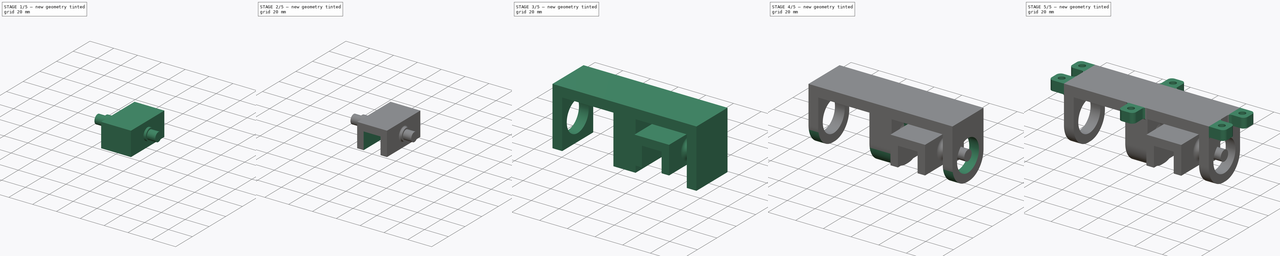
[diagram: build sequence overview — one tinted view per stage of 5, left to right]
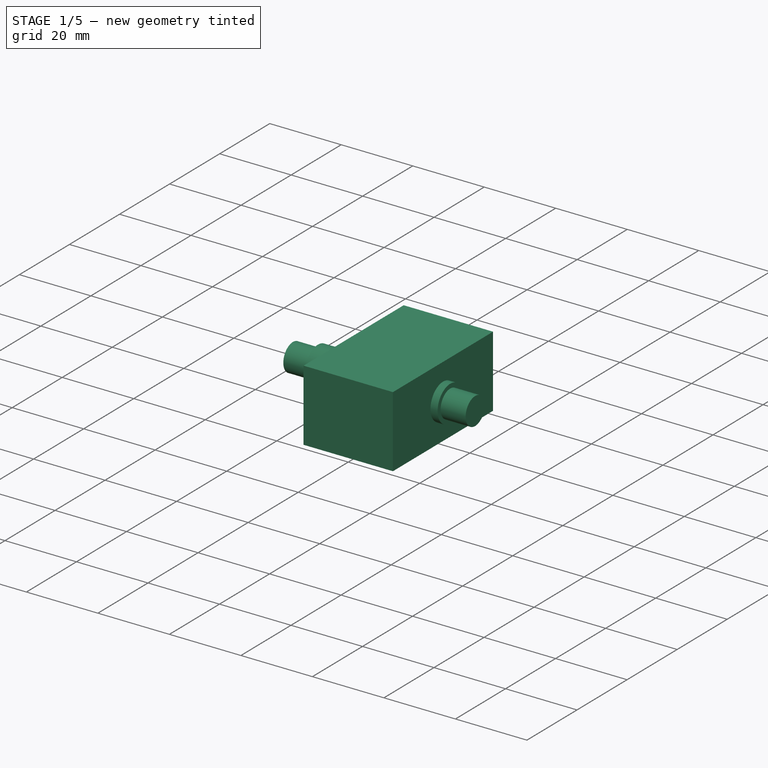
[diagram: stage 1 of 5 — iso view after this stage's code; geometry added in this stage tinted green]
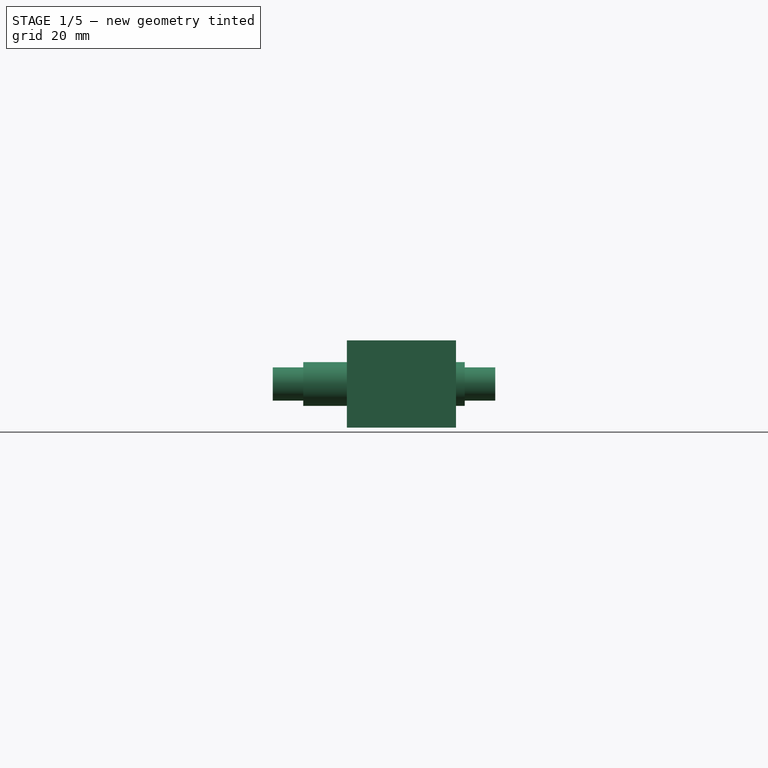
[diagram: stage 1 of 5 — front view after this stage's code; geometry added in this stage tinted green]
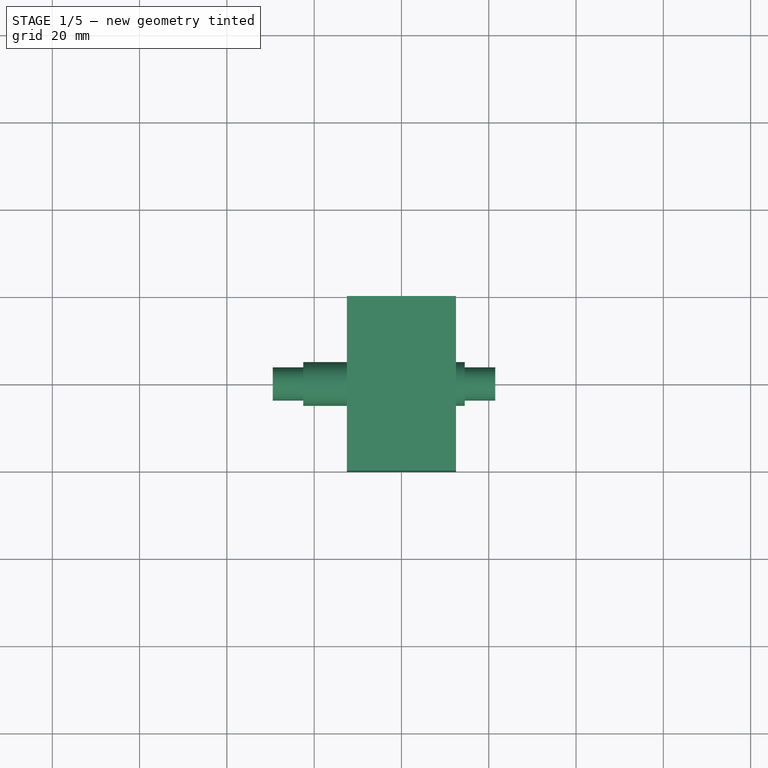
[diagram: stage 1 of 5 — top view after this stage's code; geometry added in this stage tinted green]
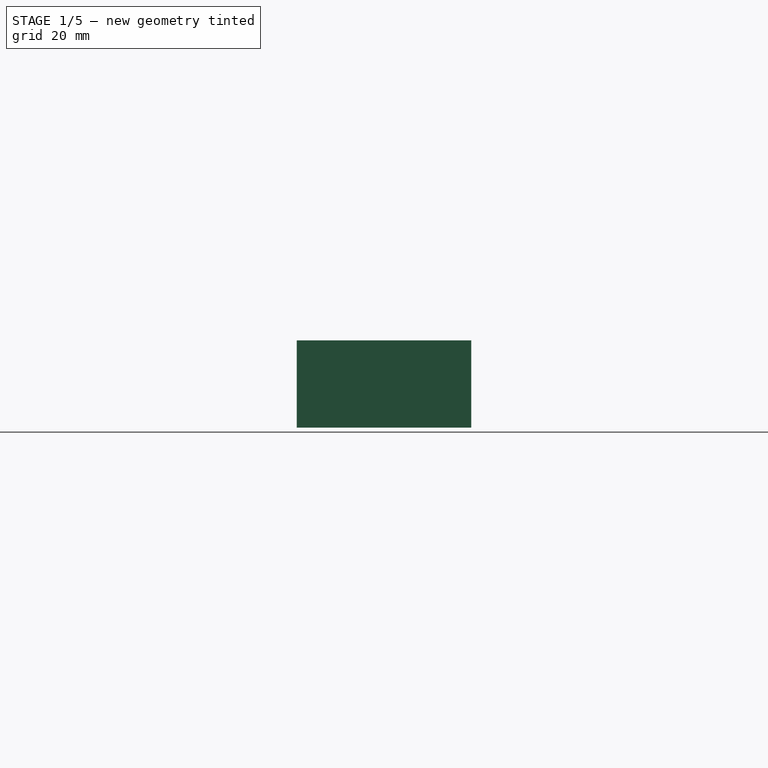
[diagram: stage 1 of 5 — right view after this stage's code; geometry added in this stage tinted green]
FCSTD DOCUMENT  (FreeCAD 0.16R6706 (Git))
Label: spot_welder_holder
License: All rights reserved
LicenseURL: http://en.wikipedia.org/wiki/All_rights_reserved
objects: Sketcher::SketchObject×10, PartDesign::Pad×5, PartDesign::Pocket×5, PartDesign::Fillet×5, Part::FeaturePython×1
note: 36 computed .brp shape members not serialized (recipe doc carries the construction recipe); baked Part::Feature solids carry a one-line shape summary decoded from their .brp

FEATURE [Sketcher::SketchObject] Sketch
  sketch-geometry (4):
    g0: LineSegment StartX=-12.5 StartY=20 StartZ=0 EndX=12.5 EndY=20 EndZ=0
    g1: LineSegment StartX=12.5 StartY=20 StartZ=0 EndX=12.5 EndY=-20 EndZ=0
    g2: LineSegment StartX=12.5 StartY=-20 StartZ=0 EndX=-12.5 EndY=-20 EndZ=0
    g3: LineSegment StartX=-12.5 StartY=-20 StartZ=0 EndX=-12.5 EndY=20 EndZ=0
  constraints (12):
    c: Coincident(g0,g1)
    c: Coincident(g1,g2)
    c: Coincident(g2,g3)
    c: Coincident(g3,g0)
    c: Horizontal(g0)
    c: Horizontal(g2)
    c: Vertical(g1)
    c: Vertical(g3)
    c: Distance(g3) = 40
    c: DistanceX(g2,g2) = 25
    c: Symmetric(g2,g0,g-1)
    c: Symmetric(g0,g0,g-2)
FEATURE [PartDesign::Pad] Pad
  Length = 20
  Length2 = 100
  Sketch = -> Sketch
  Type = 0
FEATURE [Sketcher::SketchObject] Sketch001
  Placement = pos=(-12.5,0,0) rot=(0.57735,-0.57735,-0.57735;2.0944rad)
  Support = -> Pad [Face4]
  sketch-geometry (1):
    g0: Circle CenterX=0 CenterY=10 CenterZ=0 NormalX=0 NormalY=0 NormalZ=1 Radius=3.8
  constraints (3):
    c: PointOnObject(g0,g-2)
    c: Radius(g0) = 3.8
    c: DistanceY(g-1,g0) = 10
FEATURE [PartDesign::Pad] Pad001
  Length = 17
  Length2 = 34
  Sketch = -> Sketch001
  Type = 4
FEATURE [Sketcher::SketchObject] Sketch002
  Placement = pos=(-12.5,0,0) rot=(0.57735,-0.57735,-0.57735;2.0944rad)
  Support = -> Pad001 [Face2]
  sketch-geometry (1):
    g0: Circle CenterX=0 CenterY=10 CenterZ=0 NormalX=0 NormalY=0 NormalZ=1 Radius=5
  constraints (3):
    c: PointOnObject(g0,g-2)
    c: Radius(g0) = 5
    c: Distance(g-1,g0) = 10
FEATURE [PartDesign::Pad] Pad002
  Length = 10
  Length2 = 27
  Sketch = -> Sketch002
  Type = 4
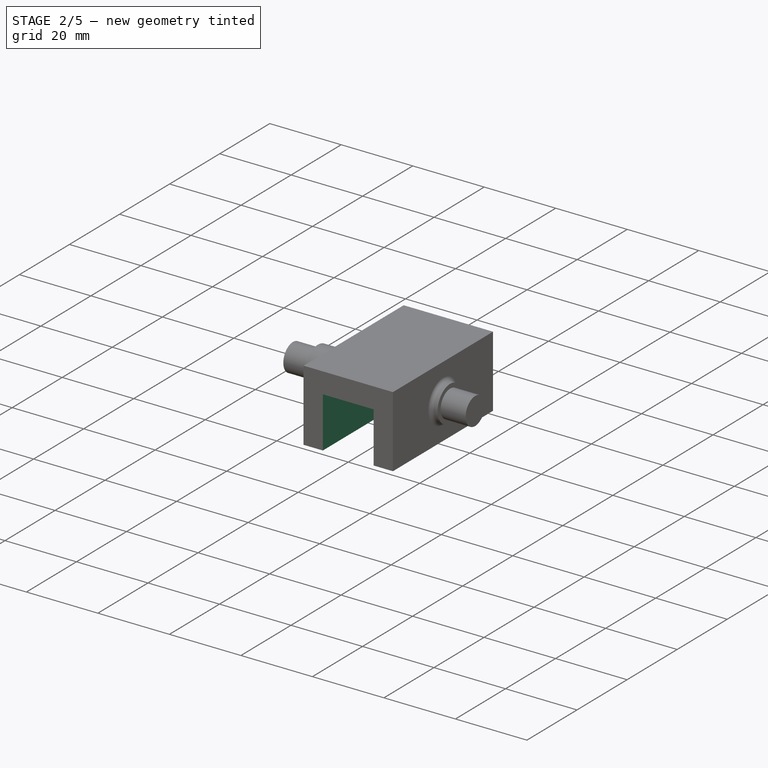
[diagram: stage 2 of 5 — iso view after this stage's code; geometry added in this stage tinted green]
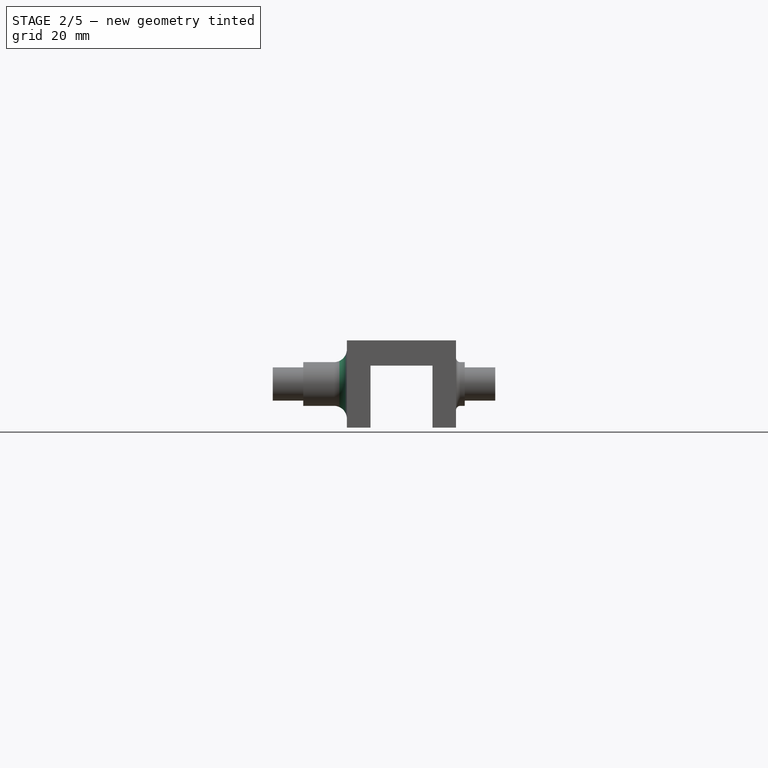
[diagram: stage 2 of 5 — front view after this stage's code; geometry added in this stage tinted green]
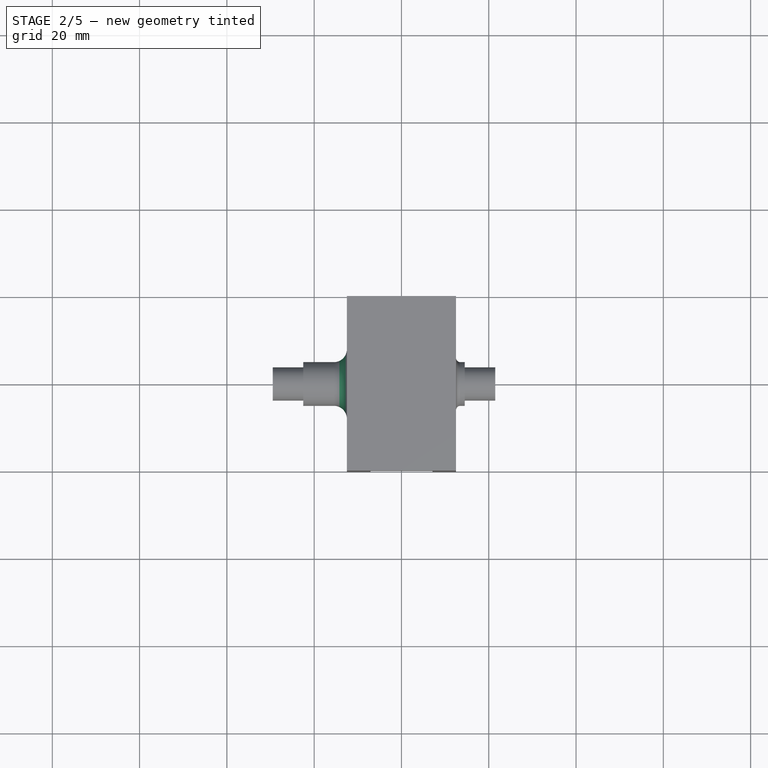
[diagram: stage 2 of 5 — top view after this stage's code; geometry added in this stage tinted green]
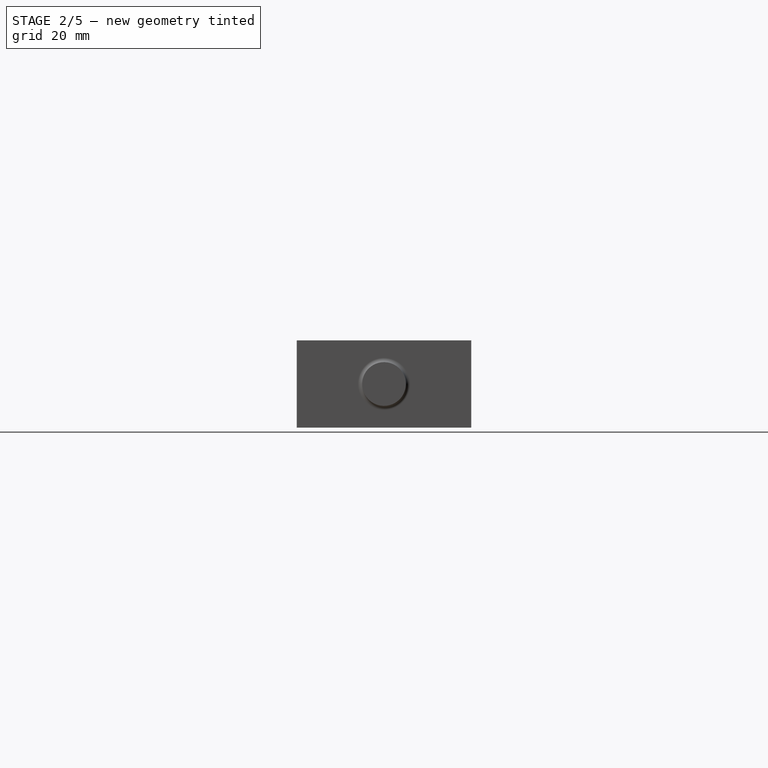
[diagram: stage 2 of 5 — right view after this stage's code; geometry added in this stage tinted green]
FEATURE [Sketcher::SketchObject] Sketch003
  Placement = pos=(0,-20,0) rot=(1,0,0;1.5708rad)
  Support = -> Pad002 [Face6]
  sketch-geometry (4):
    g0: LineSegment StartX=-7.1 StartY=14.2 StartZ=0 EndX=7.1 EndY=14.2 EndZ=0
    g1: LineSegment StartX=7.1 StartY=14.2 StartZ=0 EndX=7.1 EndY=0 EndZ=0
    g2: LineSegment StartX=7.1 StartY=0 StartZ=0 EndX=-7.1 EndY=0 EndZ=0
    g3: LineSegment StartX=-7.1 StartY=0 StartZ=0 EndX=-7.1 EndY=14.2 EndZ=0
  constraints (11):
    c: Coincident(g0,g1)
    c: Coincident(g1,g2)
    c: Coincident(g2,g3)
    c: Coincident(g3,g0)
    c: Horizontal(g0)
    c: Horizontal(g2)
    c: Vertical(g1)
    c: Vertical(g3)
    c: Symmetric(g1,g2,g-1)
    c: DistanceY(g1,g1) = 14.2
    c: Distance(g0) = 14.2
FEATURE [PartDesign::Pocket] Pocket  label="holder"
  Length = 50
  Sketch = -> Sketch003
  Type = 0
FEATURE [PartDesign::Fillet] Fillet003
  Base = -> Pocket [Edge26]
  Radius = 3
FEATURE [PartDesign::Fillet] Fillet004  label="holder001"
  Base = -> Fillet003 [Edge30]
  Radius = 1
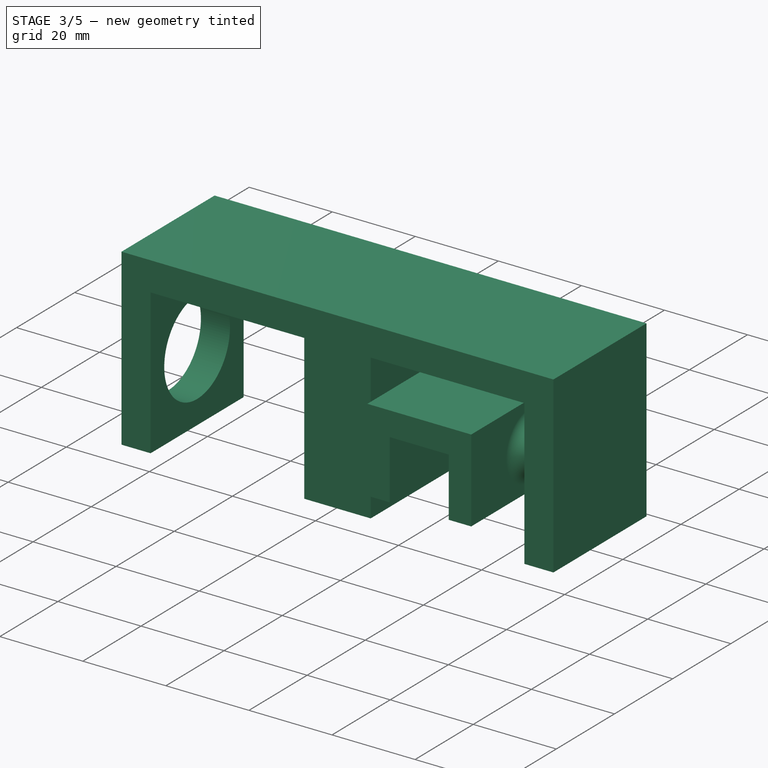
[diagram: stage 3 of 5 — iso view after this stage's code; geometry added in this stage tinted green]
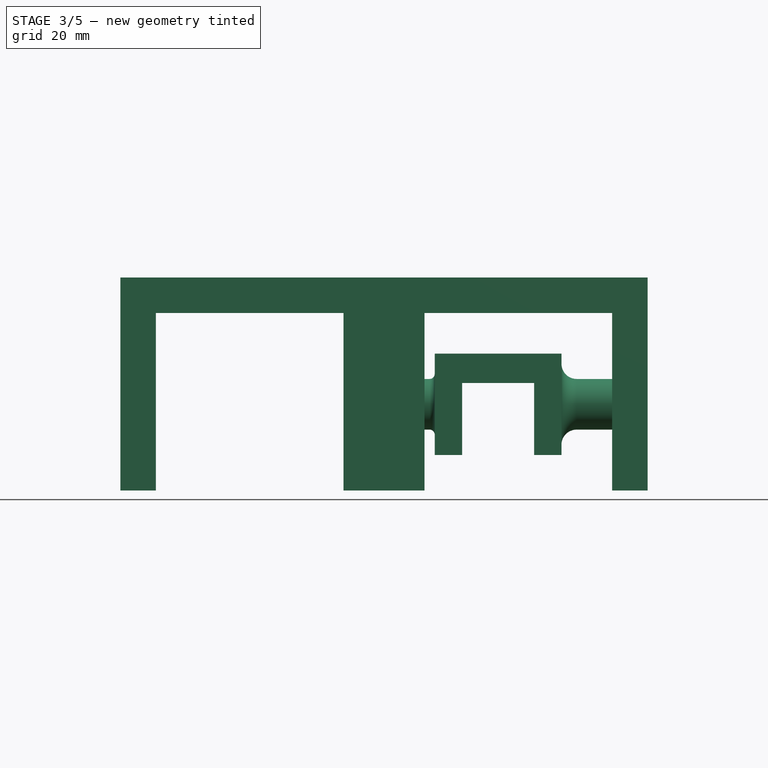
[diagram: stage 3 of 5 — front view after this stage's code; geometry added in this stage tinted green]
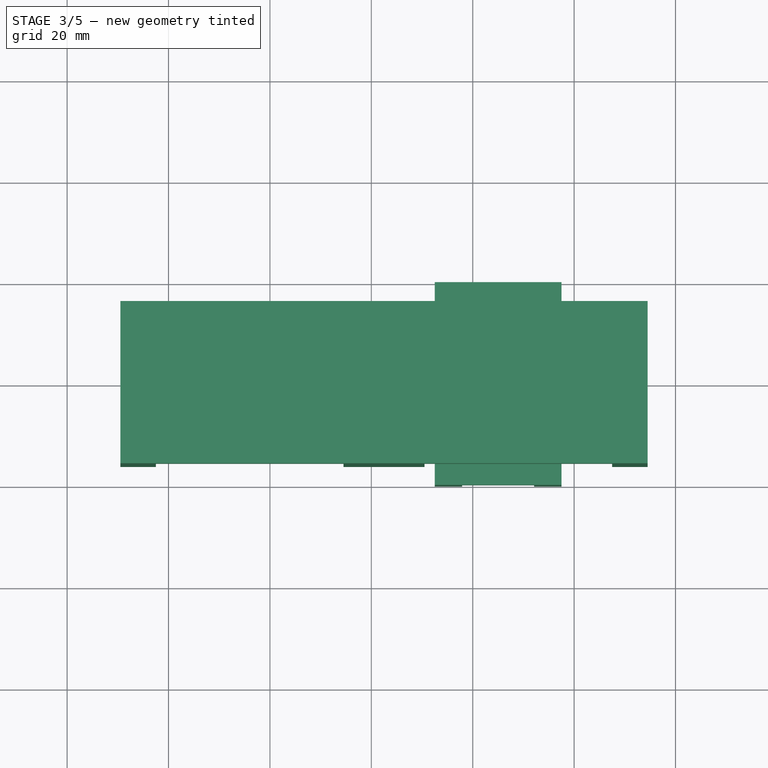
[diagram: stage 3 of 5 — top view after this stage's code; geometry added in this stage tinted green]
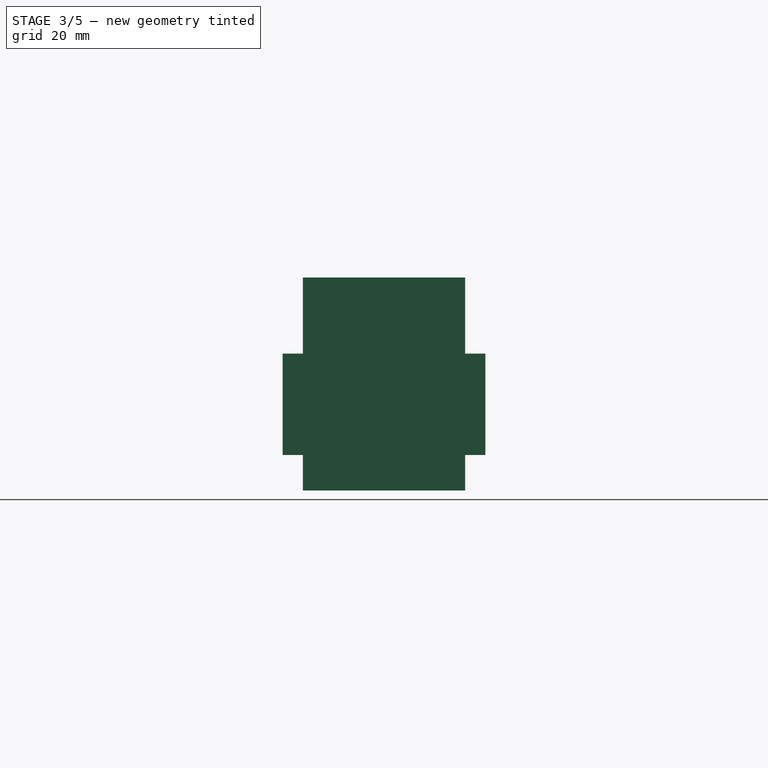
[diagram: stage 3 of 5 — right view after this stage's code; geometry added in this stage tinted green]
FEATURE [Sketcher::SketchObject] Sketch005
  sketch-geometry (4):
    g0: LineSegment StartX=-29.5 StartY=16 StartZ=0 EndX=74.5 EndY=16 EndZ=0
    g1: LineSegment StartX=74.5 StartY=16 StartZ=0 EndX=74.5 EndY=-16 EndZ=0
    g2: LineSegment StartX=74.5 StartY=-16 StartZ=0 EndX=-29.5 EndY=-16 EndZ=0
    g3: LineSegment StartX=-29.5 StartY=-16 StartZ=0 EndX=-29.5 EndY=16 EndZ=0
  constraints (12):
    c: Coincident(g0,g1)
    c: Coincident(g1,g2)
    c: Coincident(g2,g3)
    c: Coincident(g3,g0)
    c: Horizontal(g0)
    c: Horizontal(g2)
    c: Vertical(g1)
    c: Vertical(g3)
    c: DistanceX(g2,g-1) = 29.5
    c: DistanceX(g2,g2) = 104
    c: Symmetric(g0,g2,g-1)
    c: Distance(g3) = 32
FEATURE [PartDesign::Pad] Pad003
  Length = 35
  Length2 = 7
  Sketch = -> Sketch005
  Type = 4
FEATURE [Sketcher::SketchObject] Sketch006
  Placement = pos=(0,0,-7) rot=(1,0,0;3.14159rad)
  Support = -> Pad003 [Face5]
  sketch-geometry (8):
    g0: LineSegment StartX=-22.5 StartY=22.5 StartZ=0 EndX=14.5 EndY=22.5 EndZ=0
    g1: LineSegment StartX=14.5 StartY=22.5 StartZ=0 EndX=14.5 EndY=-22.5 EndZ=0
    g2: LineSegment StartX=14.5 StartY=-22.5 StartZ=0 EndX=-22.5 EndY=-22.5 EndZ=0
    g3: LineSegment StartX=-22.5 StartY=-22.5 StartZ=0 EndX=-22.5 EndY=22.5 EndZ=0
    g4: LineSegment StartX=30.5 StartY=22.5 StartZ=0 EndX=67.5 EndY=22.5 EndZ=0
    g5: LineSegment StartX=67.5 StartY=22.5 StartZ=0 EndX=67.5 EndY=-22.5 EndZ=0
    g6: LineSegment StartX=67.5 StartY=-22.5 StartZ=0 EndX=30.5 EndY=-22.5 EndZ=0
    g7: LineSegment StartX=30.5 StartY=-22.5 StartZ=0 EndX=30.5 EndY=22.5 EndZ=0
  constraints (24):
    c: Coincident(g0,g1)
    c: Coincident(g1,g2)
    c: Coincident(g2,g3)
    c: Coincident(g3,g0)
    c: Horizontal(g0)
    c: Horizontal(g2)
    c: Vertical(g1)
    c: Vertical(g3)
    c: Symmetric(g2,g0,g-1)
    c: Distance(g3) = 45
    c: Distance(g0) = 37
    c: Coincident(g4,g5)
    c: Coincident(g5,g6)
    c: Coincident(g6,g7)
    c: Coincident(g7,g4)
    c: Horizontal(g4)
    c: Horizontal(g6)
    c: Vertical(g5)
    c: Vertical(g7)
    c: Equal(g3,g7) = 45
    c: Equal(g0,g4) = 29
    c: DistanceX(g-1,g6) = 30.5
    c: PointOnObject(g6,g2)
    c: DistanceX(g-1,g0) = 14.5
FEATURE [PartDesign::Pocket] Pocket001
  Length = 35
  Sketch = -> Sketch006
  Type = 0
FEATURE [Sketcher::SketchObject] Sketch007
  Placement = pos=(-29.5,0,0) rot=(0.57735,-0.57735,-0.57735;2.0944rad)
  Support = -> Pocket001 [Face13]
  sketch-geometry (1):
    g0: Circle CenterX=0 CenterY=10 CenterZ=0 NormalX=0 NormalY=0 NormalZ=1 Radius=11.3
  constraints (3):
    c: PointOnObject(g0,g-2)
    c: Radius(g0) = 11.3
    c: DistanceY(g-1,g0) = 10
FEATURE [PartDesign::Pocket] Pocket002
  Length = 51
  Sketch = -> Sketch007
  Type = 0
FEATURE [Part::FeaturePython] Clone  label="Clone of holder001"  # Draft clone (typed FeaturePython)
  Objects = -> [Fillet004]
  Placement = pos=(45,0,0) rot=(0,0,1;3.14159rad)
  Scale = (1,1,1)
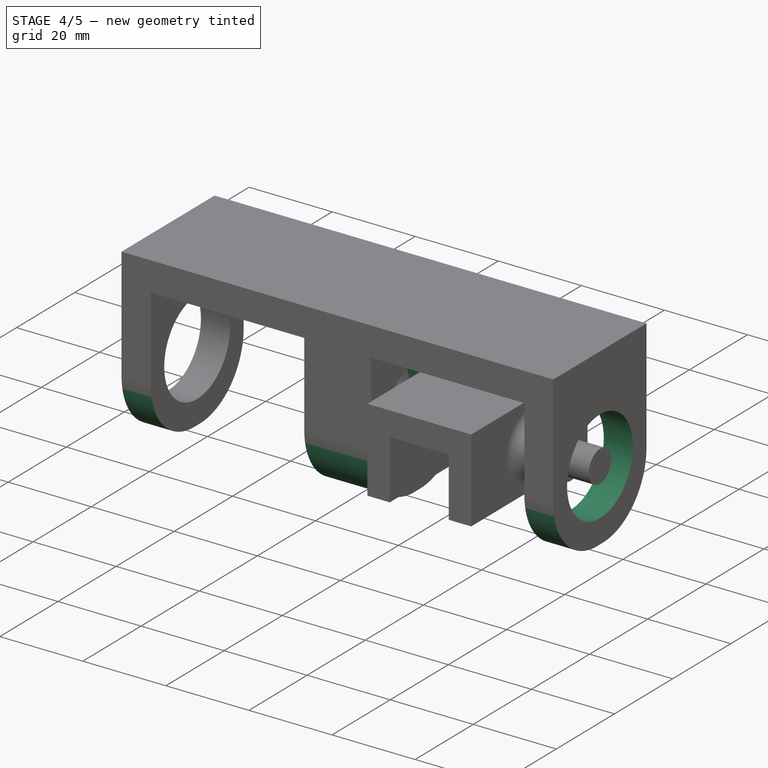
[diagram: stage 4 of 5 — iso view after this stage's code; geometry added in this stage tinted green]
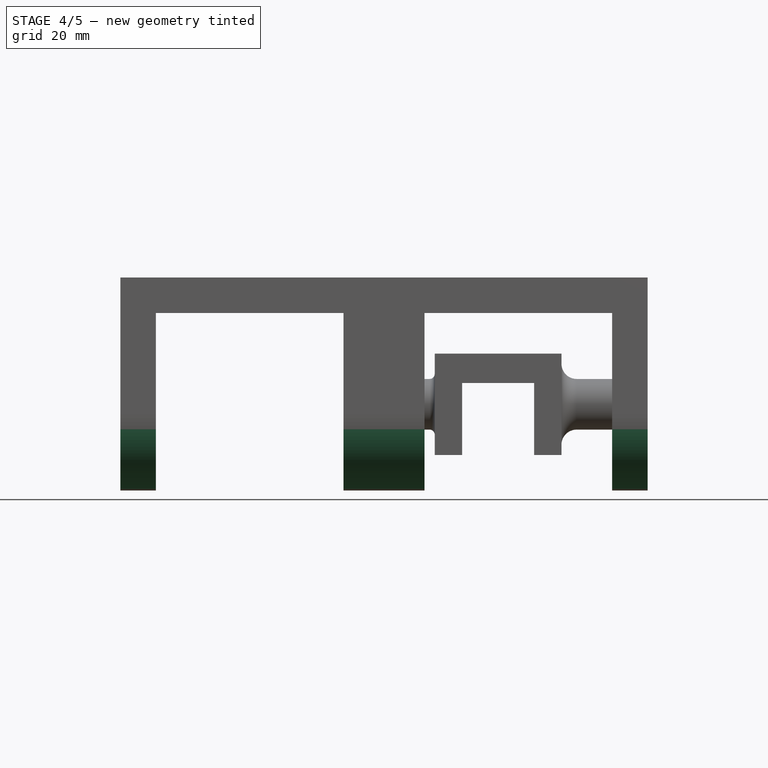
[diagram: stage 4 of 5 — front view after this stage's code; geometry added in this stage tinted green]
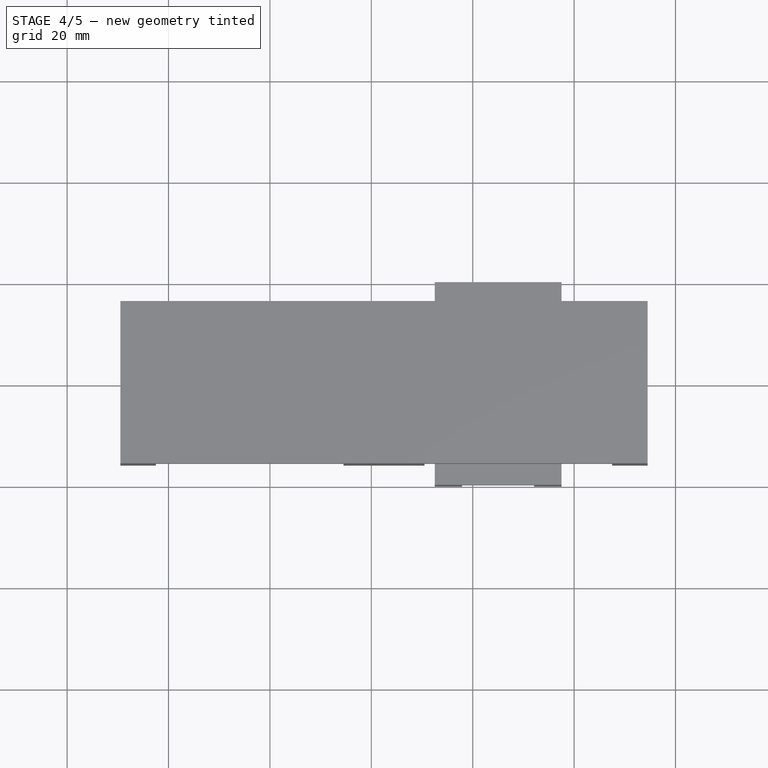
[diagram: stage 4 of 5 — top view after this stage's code; geometry added in this stage tinted green]
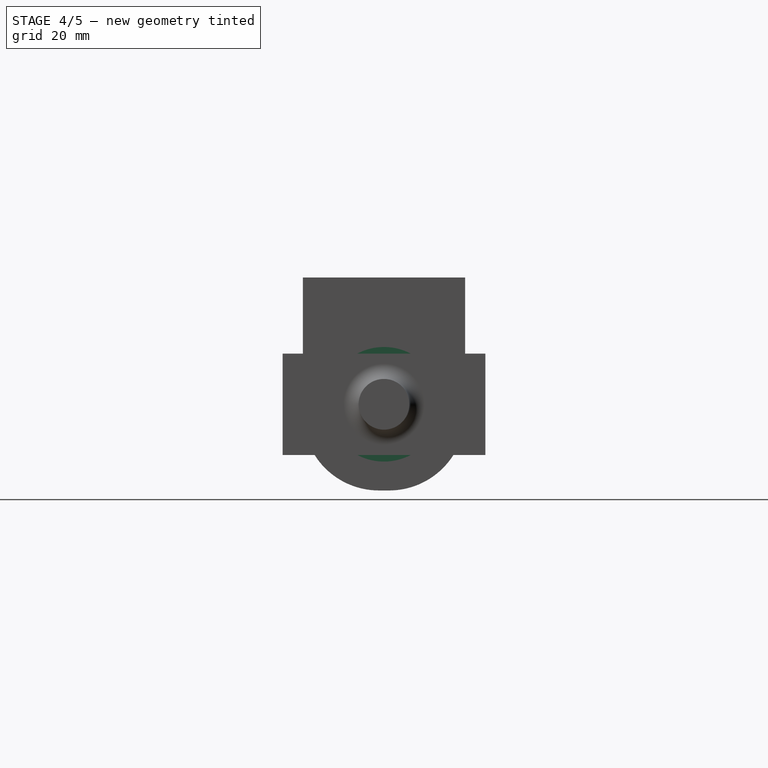
[diagram: stage 4 of 5 — right view after this stage's code; geometry added in this stage tinted green]
FEATURE [Sketcher::SketchObject] Sketch008
  Placement = pos=(74.5,0,0) rot=(0.57735,0.57735,0.57735;2.0944rad)
  Support = -> Pocket002 [Face11]
  sketch-geometry (1):
    g0: Circle CenterX=0 CenterY=10 CenterZ=0 NormalX=0 NormalY=0 NormalZ=1 Radius=11.3
  constraints (3):
    c: PointOnObject(g0,g-2)
    c: Radius(g0) = 11.3
    c: DistanceY(g-1,g0) = 10
FEATURE [PartDesign::Pocket] Pocket003
  Length = 51
  Sketch = -> Sketch008
  Type = 0
FEATURE [Sketcher::SketchObject] Sketch009
  Placement = pos=(23.5,0,0) rot=(0.57735,0.57735,0.57735;2.0944rad)
  Support = -> Pocket003 [Face20]
  sketch-geometry (1):
    g0: Circle CenterX=0 CenterY=10 CenterZ=0 NormalX=0 NormalY=0 NormalZ=1 Radius=10
  constraints (3):
    c: PointOnObject(g0,g-2)
    c: Distance(g-1,g0) = 10
    c: Radius(g0) = 10
FEATURE [PartDesign::Pocket] Pocket004
  Length = 5
  Sketch = -> Sketch009
  Type = 0
FEATURE [PartDesign::Fillet] Fillet
  Base = -> Pocket004 [Edge9,Edge5,Edge1,Edge14,Edge25,Edge35]
  Radius = 15
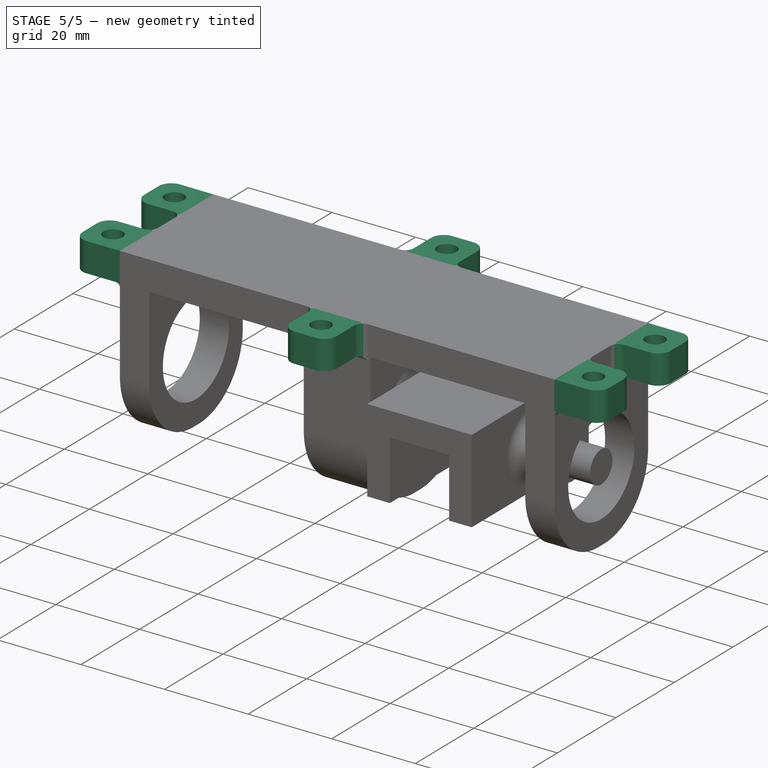
[diagram: stage 5 of 5 — iso view after this stage's code; geometry added in this stage tinted green]
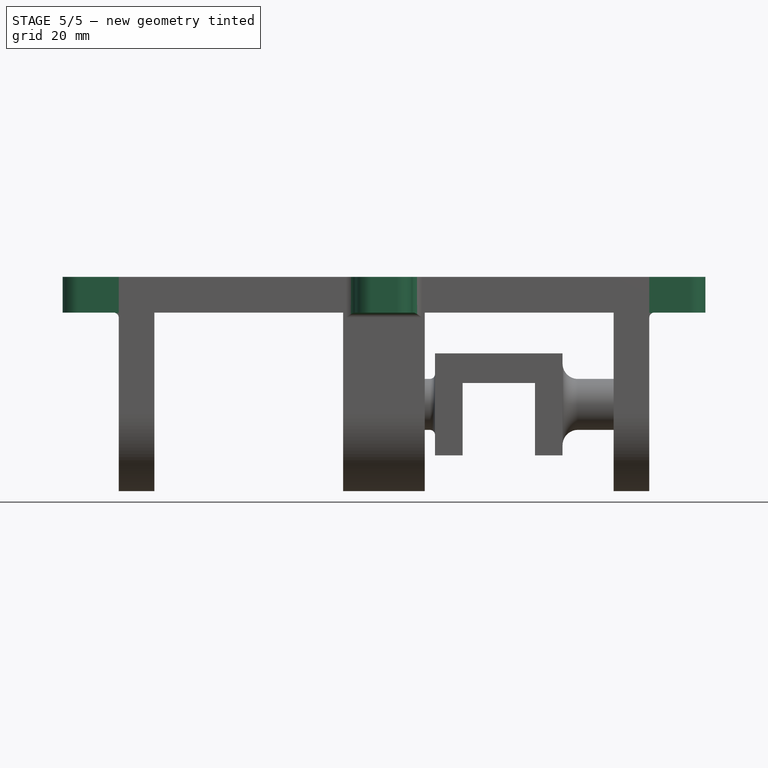
[diagram: stage 5 of 5 — front view after this stage's code; geometry added in this stage tinted green]
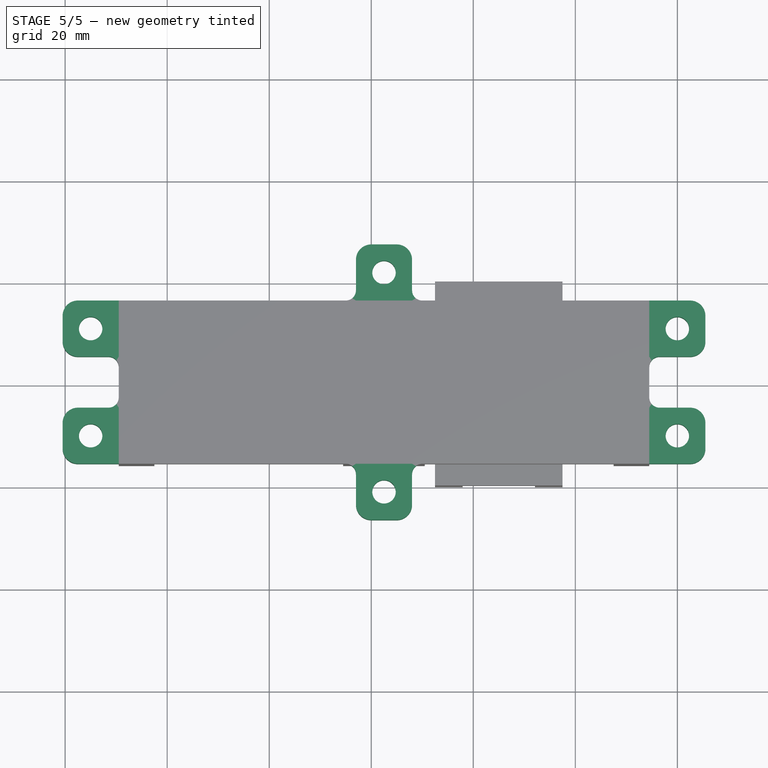
[diagram: stage 5 of 5 — top view after this stage's code; geometry added in this stage tinted green]
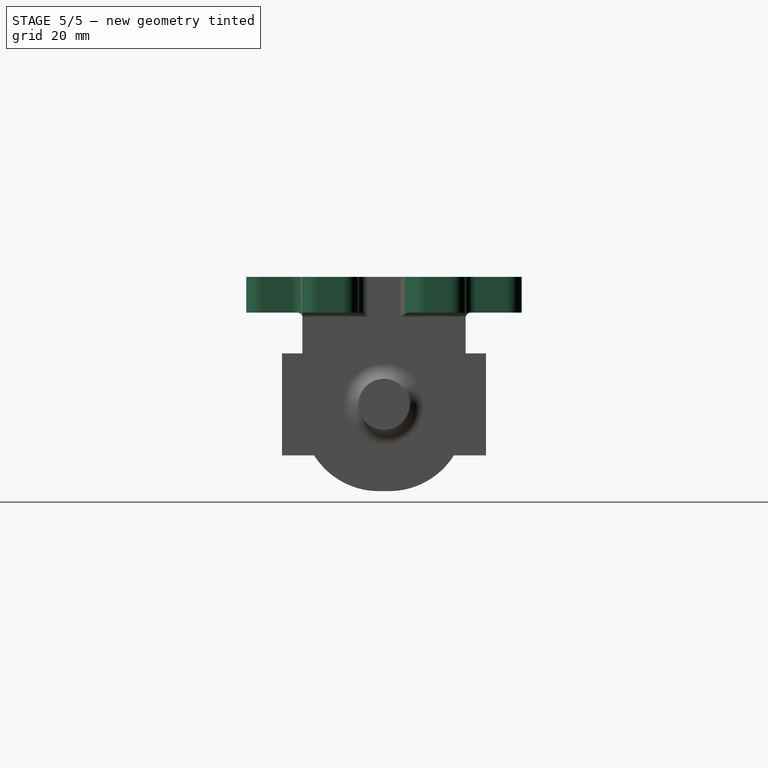
[diagram: stage 5 of 5 — right view after this stage's code; geometry added in this stage tinted green]
FEATURE [Sketcher::SketchObject] Sketch010
  Placement = pos=(0,0,35) rot=(0,0,1;0rad)
  Support = -> Fillet [Face7]
  sketch-geometry (44):
    g0: LineSegment StartX=-29.5 StartY=16 StartZ=0 EndX=-37.5 EndY=16 EndZ=0
    g1: LineSegment StartX=-40.5 StartY=13 StartZ=0 EndX=-40.5 EndY=8 EndZ=0
    g2: LineSegment StartX=-37.5 StartY=5 StartZ=0 EndX=-29.5 EndY=5 EndZ=0
    g3: LineSegment StartX=-29.5 StartY=5 StartZ=0 EndX=-29.5 EndY=16 EndZ=0
    g4: ArcOfCircle CenterX=-37.5 CenterY=13 CenterZ=0 NormalX=0 NormalY=0 NormalZ=1 Radius=3 StartAngle=1.5708 EndAngle=3.14159
    g5: ArcOfCircle CenterX=-37.5 CenterY=8 CenterZ=0 NormalX=0 NormalY=0 NormalZ=1 Radius=3 StartAngle=3.14159 EndAngle=4.71239
    g6: Circle CenterX=-35 CenterY=10.5 CenterZ=0 NormalX=0 NormalY=0 NormalZ=1 Radius=2.3
    g7: LineSegment StartX=-29.5 StartY=-16 StartZ=0 EndX=-37.5 EndY=-16 EndZ=0
    g8: LineSegment StartX=-40.5 StartY=-13 StartZ=0 EndX=-40.5 EndY=-8 EndZ=0
    g9: LineSegment StartX=-37.5 StartY=-5 StartZ=0 EndX=-29.5 EndY=-5 EndZ=0
    g10: LineSegment StartX=-29.5 StartY=-5 StartZ=0 EndX=-29.5 EndY=-16 EndZ=0
    g11: ArcOfCircle CenterX=-37.5 CenterY=-13 CenterZ=0 NormalX=0 NormalY=0 NormalZ=1 Radius=3 StartAngle=3.14159 EndAngle=4.71239
    g12: ArcOfCircle CenterX=-37.5 CenterY=-8 CenterZ=0 NormalX=0 NormalY=0 NormalZ=1 Radius=3 StartAngle=1.5708 EndAngle=3.14159
    g13: Circle CenterX=-35 CenterY=-10.5 CenterZ=0 NormalX=0 NormalY=0 NormalZ=1 Radius=2.3
    g14: LineSegment StartX=74.5 StartY=16 StartZ=0 EndX=82.5 EndY=16 EndZ=0
    g15: LineSegment StartX=85.5 StartY=13 StartZ=0 EndX=85.5 EndY=8 EndZ=0
    g16: LineSegment StartX=82.5 StartY=5 StartZ=0 EndX=74.5 EndY=5 EndZ=0
    g17: LineSegment StartX=74.5 StartY=5 StartZ=0 EndX=74.5 EndY=16 EndZ=0
    g18: ArcOfCircle CenterX=82.5 CenterY=13 CenterZ=0 NormalX=0 NormalY=0 NormalZ=1 Radius=3 StartAngle=0 EndAngle=1.5708
    g19: ArcOfCircle CenterX=82.5 CenterY=8 CenterZ=0 NormalX=0 NormalY=0 NormalZ=1 Radius=3 StartAngle=4.71239 EndAngle=6.28319
    g20: Circle CenterX=80 CenterY=10.5 CenterZ=0 NormalX=0 NormalY=0 NormalZ=1 Radius=2.3
    g21: LineSegment StartX=74.5 StartY=-16 StartZ=0 EndX=82.5 EndY=-16 EndZ=0
    g22: LineSegment StartX=85.5 StartY=-13 StartZ=0 EndX=85.5 EndY=-8 EndZ=0
    g23: LineSegment StartX=82.5 StartY=-5 StartZ=0 EndX=74.5 EndY=-5 EndZ=0
    g24: LineSegment StartX=74.5 StartY=-5 StartZ=0 EndX=74.5 EndY=-16 EndZ=0
    g25: ArcOfCircle CenterX=82.5 CenterY=-13 CenterZ=0 NormalX=0 NormalY=0 NormalZ=1 Radius=3 StartAngle=4.71239 EndAngle=6.28319
    g26: ArcOfCircle CenterX=82.5 CenterY=-8 CenterZ=0 NormalX=0 NormalY=0 NormalZ=1 Radius=3 StartAngle=0 EndAngle=1.5708
    g27: Circle CenterX=80 CenterY=-10.5 CenterZ=0 NormalX=0 NormalY=0 NormalZ=1 Radius=2.3
    g28: LineSegment StartX=28 StartY=16 StartZ=0 EndX=28 EndY=24 EndZ=0
    g29: LineSegment StartX=25 StartY=27 StartZ=0 EndX=20 EndY=27 EndZ=0
    g30: LineSegment StartX=17 StartY=24 StartZ=0 EndX=17 EndY=16 EndZ=0
    g31: LineSegment StartX=17 StartY=16 StartZ=0 EndX=28 EndY=16 EndZ=0
    g32: ArcOfCircle CenterX=25 CenterY=24 CenterZ=0 NormalX=0 NormalY=0 NormalZ=1 Radius=3 StartAngle=0 EndAngle=1.5708
    g33: ArcOfCircle CenterX=20 CenterY=24 CenterZ=0 NormalX=0 NormalY=0 NormalZ=1 Radius=3 StartAngle=1.5708 EndAngle=3.14159
    g34: Circle CenterX=22.5 CenterY=21.5 CenterZ=0 NormalX=0 NormalY=0 NormalZ=1 Radius=2.3
    g35: LineSegment [constr] StartX=22.5 StartY=21.5 StartZ=0 EndX=22.5 EndY=27 EndZ=0
    g36: LineSegment StartX=28 StartY=-16 StartZ=0 EndX=28 EndY=-24 EndZ=0
    g37: LineSegment StartX=25 StartY=-27 StartZ=0 EndX=20 EndY=-27 EndZ=0
    g38: LineSegment StartX=17 StartY=-24 StartZ=0 EndX=17 EndY=-16 EndZ=0
    g39: LineSegment StartX=17 StartY=-16 StartZ=0 EndX=28 EndY=-16 EndZ=0
    g40: ArcOfCircle CenterX=25 CenterY=-24 CenterZ=0 NormalX=0 NormalY=0 NormalZ=1 Radius=3 StartAngle=4.71239 EndAngle=6.28319
    g41: ArcOfCircle CenterX=20 CenterY=-24 CenterZ=0 NormalX=0 NormalY=0 NormalZ=1 Radius=3 StartAngle=3.14159 EndAngle=4.71239
    g42: Circle CenterX=22.5 CenterY=-21.5 CenterZ=0 NormalX=0 NormalY=0 NormalZ=1 Radius=2.3
    g43: LineSegment [constr] StartX=22.5 StartY=-21.5 StartZ=0 EndX=22.5 EndY=-27 EndZ=0
  constraints (113):
    c: Coincident(g2,g3)
    c: Coincident(g3,g0)
    c: Horizontal(g0)
    c: Horizontal(g2)
    c: Vertical(g1)
    c: Vertical(g3)
    c: Tangent(g0,g4) = -1.5708
    c: Tangent(g1,g4) = -1.5708
    c: Tangent(g2,g5) = -1.5708
    c: Tangent(g1,g5) = -1.5708
    c: Radius(g6) = 2.3
    c: DistanceX(g0,g-1) = 29.5
    c: DistanceY(g-1,g0) = 16
    c: Radius(g4) = 3
    c: Equal(g5,g4)
    c: Distance(g3) = 11
    c: DistanceX(g6,g0) = 5.5
    c: DistanceY(g6,g0) = 5.5
    c: Coincident(g9,g10)
    c: Coincident(g10,g7)
    c: Horizontal(g7)
    c: Horizontal(g9)
    c: Vertical(g8)
    c: Vertical(g10)
    c: Tangent(g7,g11) = 1.5708
    c: Tangent(g8,g11) = 1.5708
    c: Tangent(g9,g12) = 1.5708
    c: Tangent(g8,g12) = 1.5708
    c: Radius(g13) = 2.3
    c: Radius(g11) = 3
    c: Equal(g12,g11)
    c: Distance(g10) = 11
    c: Symmetric(g9,g2,g-1)
    c: Symmetric(g13,g6,g-1)
    c: Symmetric(g8,g1,g-1)
    c: DistanceX(g1,g2) = 11
    c: Coincident(g16,g17)
    c: Coincident(g17,g14)
    c: Horizontal(g14)
    c: Horizontal(g16)
    c: Vertical(g15)
    c: Vertical(g17)
    c: Tangent(g14,g18) = 1.5708
    c: Tangent(g15,g18) = 1.5708
    c: Tangent(g16,g19) = 1.5708
    c: Tangent(g15,g19) = 1.5708
    c: Radius(g20) = 2.3
    c: Radius(g18) = 3
    c: Equal(g19,g18)
    c: Distance(g17) = 11
    c: Coincident(g23,g24)
    c: Coincident(g24,g21)
    c: Horizontal(g21)
    c: Horizontal(g23)
    c: Vertical(g22)
    c: Vertical(g24)
    c: Tangent(g21,g25) = -1.5708
    c: Tangent(g22,g25) = -1.5708
    c: Tangent(g23,g26) = -1.5708
    c: Tangent(g22,g26) = -1.5708
    c: Radius(g27) = 2.3
    c: Radius(g25) = 3
    c: Equal(g26,g25)
    c: Distance(g24) = 11
    c: DistanceX(g16,g15) = 11
    c: Symmetric(g23,g16,g-1)
    c: DistanceX(g23,g27) = 5.5
    c: Symmetric(g20,g27,g-1)
    c: DistanceY(g-1,g16) = 5
    c: DistanceX(g16,g20) = 5.5
    c: DistanceX(g-1,g14) = 74.5
    c: DistanceY(g27,g23) = 5.5
    c: Coincident(g30,g31)
    c: Coincident(g31,g28)
    c: Tangent(g28,g32) = -1.5708
    c: Tangent(g29,g32) = -1.5708
    c: Tangent(g30,g33) = -1.5708
    c: Tangent(g29,g33) = -1.5708
    c: Equal(g6,g34) = 2.3
    c: Equal(g4,g32) = 3
    c: Equal(g33,g32)
    c: Equal(g3,g31) = 11
    c: DistanceX(g34,g28) = 5.5
    c: Horizontal(g29)
    c: Horizontal(g31)
    c: DistanceY(g28,g34) = 5.5
    c: Vertical(g30)
    c: Vertical(g28)
    c: DistanceY(g30,g29) = 11
    c: Coincident(g35,g34)
    c: PointOnObject(g35,g29)
    c: Vertical(g35)
    c: Symmetric(g6,g20,g35)
    c: PointOnObject(g14,g31)
    c: Coincident(g38,g39)
    c: Coincident(g39,g36)
    c: Tangent(g36,g40) = 1.5708
    c: Tangent(g37,g40) = 1.5708
    c: Tangent(g38,g41) = 1.5708
    c: Tangent(g37,g41) = 1.5708
    c: Equal(g41,g40)
    c: Horizontal(g37)
    c: Horizontal(g39)
    c: Vertical(g38)
    c: Vertical(g36)
    c: Coincident(g43,g42)
    c: PointOnObject(g43,g37)
    c: Vertical(g43)
    c: Symmetric(g42,g34,g-1)
    c: Symmetric(g36,g28,g-1)
    c: Symmetric(g38,g30,g-1)
    c: Symmetric(g29,g37,g-1)
    c: Equal(g42,g34)
FEATURE [PartDesign::Pad] Pad004
  Length = 7
  Length2 = 100
  Reversed = true
  Sketch = -> Sketch010
  Type = 0
FEATURE [PartDesign::Fillet] Fillet001
  Base = -> Pad004 [Edge42,Edge40,Edge53,Edge51,Edge27,Edge25,Edge77,Edge75]
  Radius = 2
FEATURE [PartDesign::Fillet] Fillet002  label="guide"
  Base = -> Fillet001 [Edge136,Edge88,Edge89,Edge6,Edge56,Edge57]
  Radius = 1
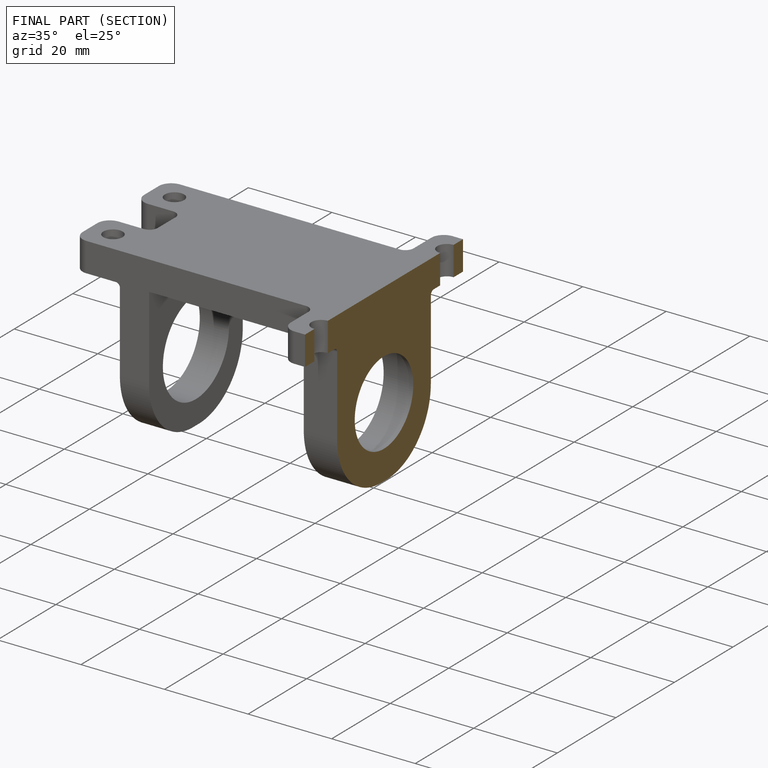
[diagram: finished part — half-section view (interior)]
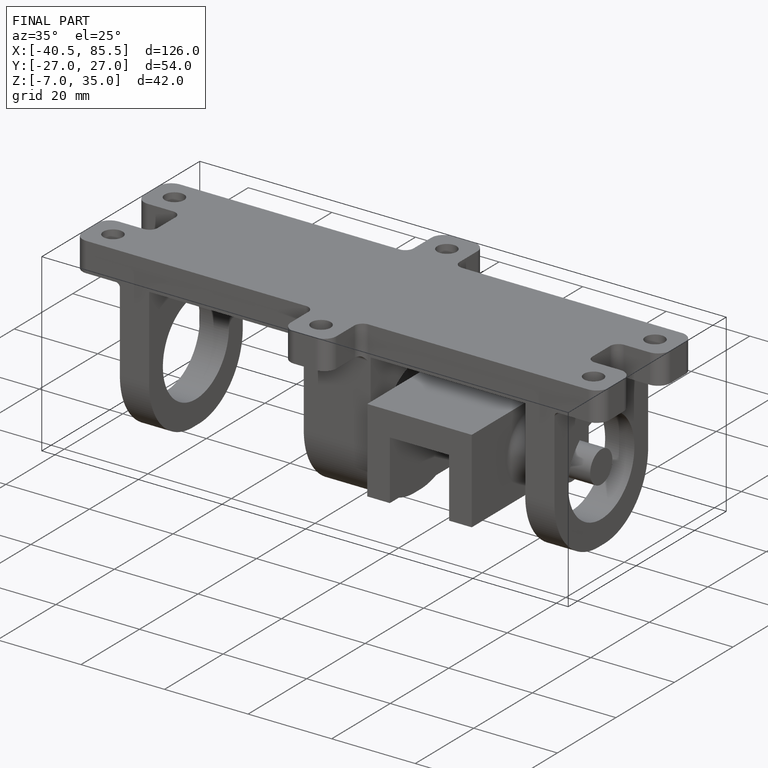
[diagram: finished part — iso view with bounding-box wireframe]
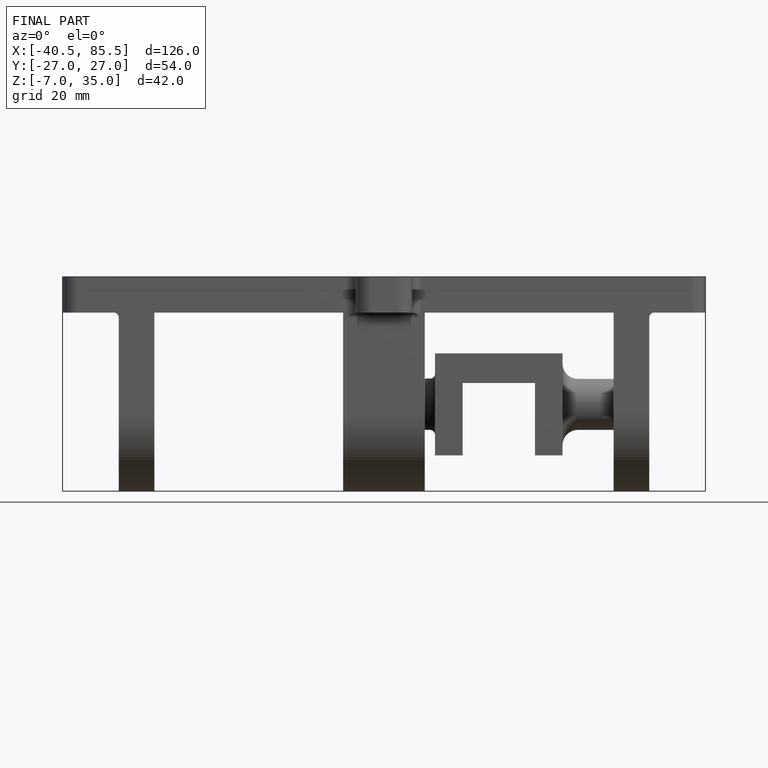
[diagram: finished part — front view with bounding-box wireframe]
